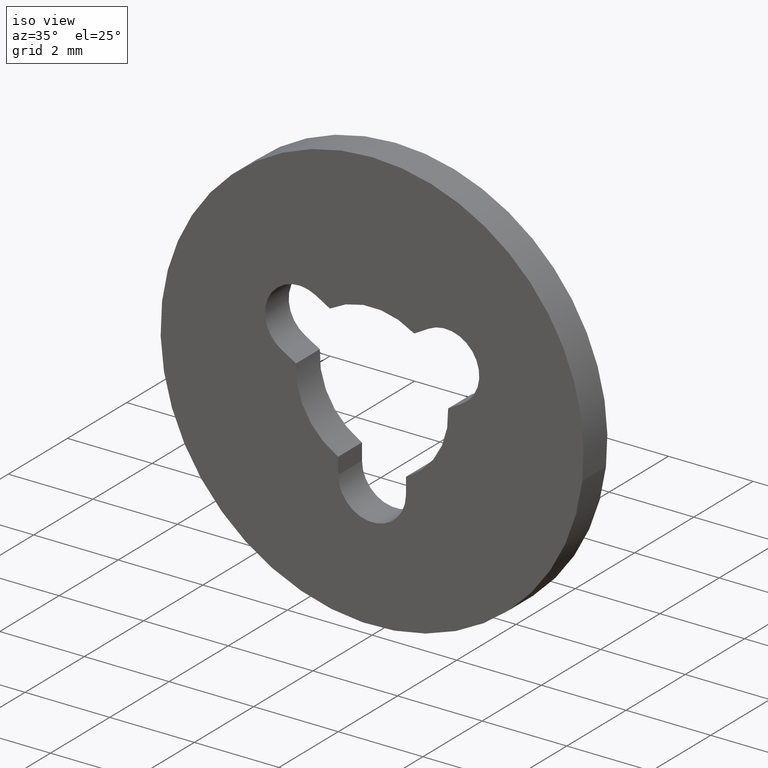
[diagram: clean part render]
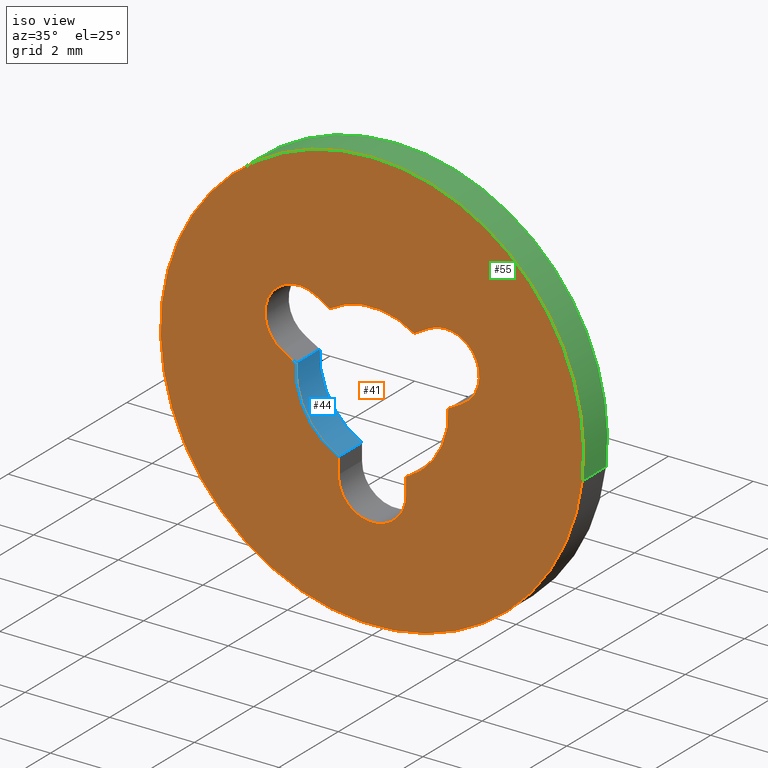
[diagram: same view with three faces highlighted in distinct colors, each labeled with its STEP entity id]
A machine part, iso view with three faces highlighted in distinct colors.
Their STEP definitions:

[orange] entity #41 — the highlighted planar face has unit normal (-0, 1, 0).
#41=ADVANCED_FACE('',(#68,#69),#67,.F.);
#67=PLANE('',#227);
#68=FACE_OUTER_BOUND('',#228,.T.);
#69=FACE_BOUND('',#229,.T.);
#224=CARTESIAN_POINT('',(-1.03923048454E+01,0.00000000000E+00,6.50000000000E+00));
#225=DIRECTION('',(-0.00000000000E+00,1.00000000000E+00,0.00000000000E+00));
#226=DIRECTION('',(1.00000000000E+00,0.00000000000E+00,0.00000000000E+00));
#227=AXIS2_PLACEMENT_3D('',#224,#225,#226);
#228=EDGE_LOOP('',(#315,#316,#317));
#229=EDGE_LOOP('',(#318,#319,#320,#321,#322,#323,#324,#325,#326,#327,#328,#329));
#315=ORIENTED_EDGE('',*,*,#403,.T.);
#316=ORIENTED_EDGE('',*,*,#404,.T.);
#317=ORIENTED_EDGE('',*,*,#405,.T.);
#318=ORIENTED_EDGE('',*,*,#406,.F.);
#319=ORIENTED_EDGE('',*,*,#407,.F.);
#320=ORIENTED_EDGE('',*,*,#408,.F.);
#321=ORIENTED_EDGE('',*,*,#409,.F.);
#322=ORIENTED_EDGE('',*,*,#410,.F.);
#323=ORIENTED_EDGE('',*,*,#411,.F.);
#324=ORIENTED_EDGE('',*,*,#412,.F.);
#325=ORIENTED_EDGE('',*,*,#413,.F.);
#326=ORIENTED_EDGE('',*,*,#414,.F.);
#327=ORIENTED_EDGE('',*,*,#415,.F.);
#328=ORIENTED_EDGE('',*,*,#416,.F.);
#329=ORIENTED_EDGE('',*,*,#417,.F.);
#403=EDGE_CURVE('',#537,#538,#539,.T.);
#404=EDGE_CURVE('',#538,#545,#546,.T.);
#405=EDGE_CURVE('',#545,#537,#552,.T.);
#406=EDGE_CURVE('',#558,#559,#560,.T.);
#407=EDGE_CURVE('',#566,#558,#567,.T.);
#408=EDGE_CURVE('',#573,#566,#574,.T.);
#409=EDGE_CURVE('',#580,#573,#581,.T.);
#410=EDGE_CURVE('',#587,#580,#588,.T.);
#411=EDGE_CURVE('',#594,#587,#595,.T.);
#412=EDGE_CURVE('',#601,#594,#602,.T.);
#413=EDGE_CURVE('',#608,#601,#609,.T.);
#414=EDGE_CURVE('',#615,#608,#616,.T.);
#415=EDGE_CURVE('',#622,#615,#623,.T.);
#416=EDGE_CURVE('',#629,#622,#630,.T.);
#417=EDGE_CURVE('',#559,#629,#636,.T.);
#537=VERTEX_POINT('',#795);
#538=VERTEX_POINT('',#796);
#539=CIRCLE('',#800,5.00000000000E+00);
#545=VERTEX_POINT('',#801);
#546=CIRCLE('',#805,5.00000000000E+00);
#552=CIRCLE('',#809,5.00000000000E+00);
#558=VERTEX_POINT('',#810);
#559=VERTEX_POINT('',#811);
#560=LINE('',#812,#813);
#566=VERTEX_POINT('',#815);
#567=CIRCLE('',#819,8.00000000000E-01);
#573=VERTEX_POINT('',#820);
#574=LINE('',#821,#822);
#580=VERTEX_POINT('',#824);
#581=CIRCLE('',#828,1.80000000000E+00);
#587=VERTEX_POINT('',#829);
#588=LINE('',#830,#831);
#594=VERTEX_POINT('',#833);
#595=CIRCLE('',#837,8.00016052489E-01);
#601=VERTEX_POINT('',#838);
#602=LINE('',#839,#840);
#608=VERTEX_POINT('',#842);
#609=CIRCLE('',#846,1.80000000000E+00);
#615=VERTEX_POINT('',#847);
#616=LINE('',#848,#849);
#622=VERTEX_POINT('',#851);
#623=CIRCLE('',#855,8.00000000000E-01);
#629=VERTEX_POINT('',#856);
#630=LINE('',#857,#858);
#636=CIRCLE('',#863,1.80000000000E+00);
#795=CARTESIAN_POINT('',(1.59872115546E-14,5.54611059827E-13,5.00000000000E+00));
#796=CARTESIAN_POINT('',(-4.96494555522E+00,3.05491903763E-14,5.91029300183E-01));
#797=CARTESIAN_POINT('',(-6.92335078156E-13,4.56834991596E-14,-1.52189372216E-12));
#798=DIRECTION('',(1.51648246594E-14,-1.00000000000E+00,1.01785512133E-13));
#799=DIRECTION('',(1.41303635459E-13,1.01785512133E-13,1.00000000000E+00));
#800=AXIS2_PLACEMENT_3D('',#797,#798,#799);
#801=CARTESIAN_POINT('',(4.96504763614E+00,6.09067045721E-14,-5.90171136897E-01));
#802=CARTESIAN_POINT('',(-6.92335078156E-13,4.56834991596E-14,-1.52189372216E-12));
#803=DIRECTION('',(1.51648246594E-14,-1.00000000000E+00,1.01785512133E-13));
#804=DIRECTION('',(1.41303635459E-13,1.01785512133E-13,1.00000000000E+00));
#805=AXIS2_PLACEMENT_3D('',#802,#803,#804);
#806=CARTESIAN_POINT('',(-6.92335078156E-13,4.56834991596E-14,-1.52189372216E-12));
#807=DIRECTION('',(1.51648246594E-14,-1.00000000000E+00,1.01785512133E-13));
#808=DIRECTION('',(1.41303635459E-13,1.01785512133E-13,1.00000000000E+00));
#809=AXIS2_PLACEMENT_3D('',#806,#807,#808);
#810=CARTESIAN_POINT('',(8.00000000000E-01,0.00000000000E+00,-1.99999986037E+00));
#811=CARTESIAN_POINT('',(8.00000000000E-01,0.00000000000E+00,-1.61245154966E+00));
#812=CARTESIAN_POINT('',(8.00000000000E-01,0.00000000000E+00,-1.99999986037E+00));
#813=VECTOR('',#814,3.87548310714E-01);
#814=DIRECTION('',(6.18782656741E-14,0.00000000000E+00,1.00000000000E+00));
#815=CARTESIAN_POINT('',(-8.00000000000E-01,0.00000000000E+00,-2.00000000000E+00));
#816=CARTESIAN_POINT('',(9.71440491724E-17,0.00000000000E+00,-2.00000000000E+00));
#817=DIRECTION('',(0.00000000000E+00,-1.00000000000E+00,0.00000000000E+00));
#818=DIRECTION('',(-1.00000000000E+00,0.00000000000E+00,1.22460635382E-16));
#819=AXIS2_PLACEMENT_3D('',#816,#817,#818);
#820=CARTESIAN_POINT('',(-8.00000000000E-01,0.00000000000E+00,-1.61245154966E+00));
#821=CARTESIAN_POINT('',(-8.00000000000E-01,0.00000000000E+00,-1.61245154966E+00));
#822=VECTOR('',#823,3.87548450340E-01);
#823=DIRECTION('',(0.00000000000E+00,0.00000000000E+00,-1.00000000000E+00));
#824=CARTESIAN_POINT('',(-1.79642349212E+00,0.00000000000E+00,1.13413566068E-01));
#825=CARTESIAN_POINT('',(4.44089209850E-16,0.00000000000E+00,-2.22044604925E-16));
#826=DIRECTION('',(0.00000000000E+00,-1.00000000000E+00,0.00000000000E+00));
#827=DIRECTION('',(9.98013051176E-01,-0.00000000000E+00,-6.30075367044E-02));
#828=AXIS2_PLACEMENT_3D('',#825,#826,#827);
#829=CARTESIAN_POINT('',(-2.12312334425E+00,0.00000000000E+00,3.02073969353E-01));
#830=CARTESIAN_POINT('',(-2.12312334425E+00,0.00000000000E+00,3.02073969353E-01));
#831=VECTOR('',#832,3.77260574601E-01);
#832=DIRECTION('',(8.65979310119E-01,0.00000000000E+00,-5.00079828073E-01));
#833=CARTESIAN_POINT('',(-1.33200000000E+00,0.00000000000E+00,1.69280000000E+00));
#834=CARTESIAN_POINT('',(-1.73207188998E+00,0.00000000000E+00,1.00000265078E+00));
#835=DIRECTION('',(0.00000000000E+00,-1.00000000000E+00,0.00000000000E+00));
#836=DIRECTION('',(5.00079828073E-01,0.00000000000E+00,8.65979310119E-01));
#837=AXIS2_PLACEMENT_3D('',#834,#835,#836);
#838=CARTESIAN_POINT('',(-9.96449955275E-01,0.00000000000E+00,1.49902884783E+00));
#839=CARTESIAN_POINT('',(-9.96449955275E-01,0.00000000000E+00,1.49902884783E+00));
#840=VECTOR('',#841,3.87480440703E-01);
#841=DIRECTION('',(-8.65979310119E-01,0.00000000000E+00,5.00079828073E-01));
#842=CARTESIAN_POINT('',(9.96449962194E-01,0.00000000000E+00,1.49902884323E+00));
#843=CARTESIAN_POINT('',(-5.71426373556E-16,0.00000000000E+00,3.77475828373E-15));
#844=DIRECTION('',(0.00000000000E+00,-1.00000000000E+00,0.00000000000E+00));
#845=DIRECTION('',(-5.53583312330E-01,-0.00000000000E+00,-8.32793801796E-01));
#846=AXIS2_PLACEMENT_3D('',#843,#844,#845);
#847=CARTESIAN_POINT('',(1.32753844185E+00,0.00000000000E+00,1.69016660718E+00));
#848=CARTESIAN_POINT('',(1.32753844185E+00,0.00000000000E+00,1.69016660718E+00));
#849=VECTOR('',#850,3.82299916510E-01);
#850=DIRECTION('',(-8.66043818878E-01,0.00000000000E+00,-4.99968102766E-01));
#851=CARTESIAN_POINT('',(2.13666155815E+00,0.00000000000E+00,3.09833392821E-01));
#852=CARTESIAN_POINT('',(1.73210000000E+00,0.00000000000E+00,1.00000000000E+00));
#853=DIRECTION('',(0.00000000000E+00,-1.00000000000E+00,0.00000000000E+00));
#854=DIRECTION('',(5.05701947691E-01,0.00000000000E+00,-8.62708258974E-01));
#855=AXIS2_PLACEMENT_3D('',#852,#853,#854);
#856=CARTESIAN_POINT('',(1.79642349236E+00,0.00000000000E+00,1.13413562169E-01));
#857=CARTESIAN_POINT('',(1.79642349236E+00,0.00000000000E+00,1.13413562169E-01));
#858=VECTOR('',#859,3.92864723900E-01);
#859=DIRECTION('',(8.66043818878E-01,0.00000000000E+00,4.99968102766E-01));
#860=CARTESIAN_POINT('',(8.88178419700E-16,0.00000000000E+00,-5.55111512313E-16));
#861=DIRECTION('',(0.00000000000E+00,-1.00000000000E+00,0.00000000000E+00));
#862=DIRECTION('',(-4.44444444444E-01,-0.00000000000E+00,8.95806416478E-01));
#863=AXIS2_PLACEMENT_3D('',#860,#861,#862);

[blue] entity #44 — the highlighted cylindrical surface (partial cylindrical patch) has radius 1.8 mm, axis along (-0, -1, -0).
#44=ADVANCED_FACE('',(#99),#98,.F.);
#98=CYLINDRICAL_SURFACE('',#243,1.80000000000E+00);
#99=FACE_OUTER_BOUND('',#244,.T.);
#240=CARTESIAN_POINT('',(-1.13202598353E-15,-2.05000000000E-02,-6.98972979856E-16));
#241=DIRECTION('',(-5.18809254088E-17,-1.00000000000E+00,-7.81419752064E-17));
#242=DIRECTION('',(4.08528944459E-01,-9.25185853854E-17,9.12745365115E-01));
#243=AXIS2_PLACEMENT_3D('',#240,#241,#242);
#244=EDGE_LOOP('',(#338,#339,#340,#341));
#338=ORIENTED_EDGE('',*,*,#409,.T.);
#339=ORIENTED_EDGE('',*,*,#420,.F.);
#340=ORIENTED_EDGE('',*,*,#401,.F.);
#341=ORIENTED_EDGE('',*,*,#421,.T.);
#401=EDGE_CURVE('',#517,#524,#525,.T.);
#409=EDGE_CURVE('',#580,#573,#581,.T.);
#420=EDGE_CURVE('',#524,#573,#654,.T.);
#421=EDGE_CURVE('',#517,#580,#660,.T.);
#517=VERTEX_POINT('',#783);
#524=VERTEX_POINT('',#787);
#525=CIRCLE('',#791,1.80000000000E+00);
#573=VERTEX_POINT('',#820);
#580=VERTEX_POINT('',#824);
#581=CIRCLE('',#828,1.80000000000E+00);
#654=LINE('',#870,#871);
#660=LINE('',#873,#874);
#783=CARTESIAN_POINT('',(-1.79642349212E+00,8.00000000000E-01,1.13413566068E-01));
#787=CARTESIAN_POINT('',(-8.00000000000E-01,8.00000000000E-01,-1.61245154966E+00));
#788=CARTESIAN_POINT('',(4.44089209850E-16,8.00000000000E-01,-2.22044604925E-16));
#789=DIRECTION('',(-3.11292680307E-16,-1.00000000000E+00,-3.61682614948E-17));
#790=DIRECTION('',(9.98013051176E-01,-3.08395284618E-16,-6.30075367044E-02));
#791=AXIS2_PLACEMENT_3D('',#788,#789,#790);
#820=CARTESIAN_POINT('',(-8.00000000000E-01,0.00000000000E+00,-1.61245154966E+00));
#824=CARTESIAN_POINT('',(-1.79642349212E+00,0.00000000000E+00,1.13413566068E-01));
#825=CARTESIAN_POINT('',(4.44089209850E-16,0.00000000000E+00,-2.22044604925E-16));
#826=DIRECTION('',(0.00000000000E+00,-1.00000000000E+00,0.00000000000E+00));
#827=DIRECTION('',(9.98013051176E-01,-0.00000000000E+00,-6.30075367044E-02));
#828=AXIS2_PLACEMENT_3D('',#825,#826,#827);
#870=CARTESIAN_POINT('',(-8.00000000000E-01,8.00000000000E-01,-1.61245154966E+00));
#871=VECTOR('',#872,8.00000000000E-01);
#872=DIRECTION('',(0.00000000000E+00,-1.00000000000E+00,0.00000000000E+00));
#873=CARTESIAN_POINT('',(-1.79642349212E+00,8.00000000000E-01,1.13413566068E-01));
#874=VECTOR('',#875,8.00000000000E-01);
#875=DIRECTION('',(0.00000000000E+00,-1.00000000000E+00,0.00000000000E+00));

[green] entity #55 — the highlighted cylindrical surface (partial cylindrical patch) has radius 5 mm, axis along (0, 1, 0).
#55=ADVANCED_FACE('',(#209),#208,.T.);
#208=CYLINDRICAL_SURFACE('',#298,5.00000000000E+00);
#209=FACE_OUTER_BOUND('',#299,.T.);
#295=CARTESIAN_POINT('',(1.37523430185E-17,8.20000000000E-01,5.87533409062E-17));
#296=DIRECTION('',(2.44685212766E-17,1.00000000000E+00,2.05851080361E-16));
#297=DIRECTION('',(9.93009526364E-01,-1.54074395551E-32,-1.18034234657E-01));
#298=AXIS2_PLACEMENT_3D('',#295,#296,#297);
#299=EDGE_LOOP('',(#382,#383,#384,#385,#386,#387));
#382=ORIENTED_EDGE('',*,*,#403,.F.);
#383=ORIENTED_EDGE('',*,*,#405,.F.);
#384=ORIENTED_EDGE('',*,*,#430,.T.);
#385=ORIENTED_EDGE('',*,*,#388,.T.);
#386=ORIENTED_EDGE('',*,*,#390,.T.);
#387=ORIENTED_EDGE('',*,*,#431,.F.);
#388=EDGE_CURVE('',#432,#433,#434,.T.);
#390=EDGE_CURVE('',#433,#440,#447,.T.);
#403=EDGE_CURVE('',#537,#538,#539,.T.);
#405=EDGE_CURVE('',#545,#537,#552,.T.);
#430=EDGE_CURVE('',#545,#432,#714,.T.);
#431=EDGE_CURVE('',#538,#440,#720,.T.);
#432=VERTEX_POINT('',#726);
#433=VERTEX_POINT('',#727);
#434=CIRCLE('',#731,5.00000000000E+00);
#440=VERTEX_POINT('',#732);
#447=CIRCLE('',#740,5.00000000000E+00);
#537=VERTEX_POINT('',#795);
#538=VERTEX_POINT('',#796);
#539=CIRCLE('',#800,5.00000000000E+00);
#545=VERTEX_POINT('',#801);
#552=CIRCLE('',#809,5.00000000000E+00);
#714=(BOUNDED_CURVE() B_SPLINE_CURVE(1,(#900,#901),.UNSPECIFIED.,.F.,.F.) B_SPLINE_CURVE_WITH_KNOTS((2,2),(8.33333730703E-02,9.16666640476E-01),.UNSPECIFIED.) CURVE() GEOMETRIC_REPRESENTATION_ITEM() RATIONAL_B_SPLINE_CURVE((1.00000000000E+00,1.00000000000E+00)) REPRESENTATION_ITEM('') );
#720=(BOUNDED_CURVE() B_SPLINE_CURVE(1,(#902,#903),.UNSPECIFIED.,.F.,.F.) B_SPLINE_CURVE_WITH_KNOTS((2,2),(8.33333333344E-02,9.16666666667E-01),.UNSPECIFIED.) CURVE() GEOMETRIC_REPRESENTATION_ITEM() RATIONAL_B_SPLINE_CURVE((7.50000000000E-01,7.50000000000E-01)) REPRESENTATION_ITEM('') );
#726=CARTESIAN_POINT('',(4.96504763614E+00,8.00000000000E-01,-5.90171136897E-01));
#727=CARTESIAN_POINT('',(-2.52020626590E-14,8.00000000000E-01,5.00000000000E+00));
#728=CARTESIAN_POINT('',(-6.76347866602E-13,8.00000000000E-01,-1.48592249616E-12));
#729=DIRECTION('',(7.83833658955E-17,-1.00000000000E+00,2.83194878516E-16));
#730=DIRECTION('',(1.29882216093E-13,2.83194878516E-16,1.00000000000E+00));
#731=AXIS2_PLACEMENT_3D('',#728,#729,#730);
#732=CARTESIAN_POINT('',(-4.96494555522E+00,8.00000000000E-01,5.91029300183E-01));
#737=CARTESIAN_POINT('',(-6.76347866602E-13,8.00000000000E-01,-1.48592249616E-12));
#738=DIRECTION('',(7.83833658955E-17,-1.00000000000E+00,2.83194878516E-16));
#739=DIRECTION('',(1.29882216093E-13,2.83194878516E-16,1.00000000000E+00));
#740=AXIS2_PLACEMENT_3D('',#737,#738,#739);
#795=CARTESIAN_POINT('',(1.59872115546E-14,5.54611059827E-13,5.00000000000E+00));
#796=CARTESIAN_POINT('',(-4.96494555522E+00,3.05491903763E-14,5.91029300183E-01));
#797=CARTESIAN_POINT('',(-6.92335078156E-13,4.56834991596E-14,-1.52189372216E-12));
#798=DIRECTION('',(1.51648246594E-14,-1.00000000000E+00,1.01785512133E-13));
#799=DIRECTION('',(1.41303635459E-13,1.01785512133E-13,1.00000000000E+00));
#800=AXIS2_PLACEMENT_3D('',#797,#798,#799);
#801=CARTESIAN_POINT('',(4.96504763614E+00,6.09067045721E-14,-5.90171136897E-01));
#806=CARTESIAN_POINT('',(-6.92335078156E-13,4.56834991596E-14,-1.52189372216E-12));
#807=DIRECTION('',(1.51648246594E-14,-1.00000000000E+00,1.01785512133E-13));
#808=DIRECTION('',(1.41303635459E-13,1.01785512133E-13,1.00000000000E+00));
#809=AXIS2_PLACEMENT_3D('',#806,#807,#808);
#900=CARTESIAN_POINT('',(4.96504763182E+00,3.81464782956E-08,-5.90171173284E-01));
#901=CARTESIAN_POINT('',(4.96504763182E+00,7.99999974857E-01,-5.90171173284E-01));
#902=CARTESIAN_POINT('',(-4.96504763182E+00,4.09302221745E-14,5.90171173284E-01));
#903=CARTESIAN_POINT('',(-4.96504763182E+00,8.00000000000E-01,5.90171173284E-01));